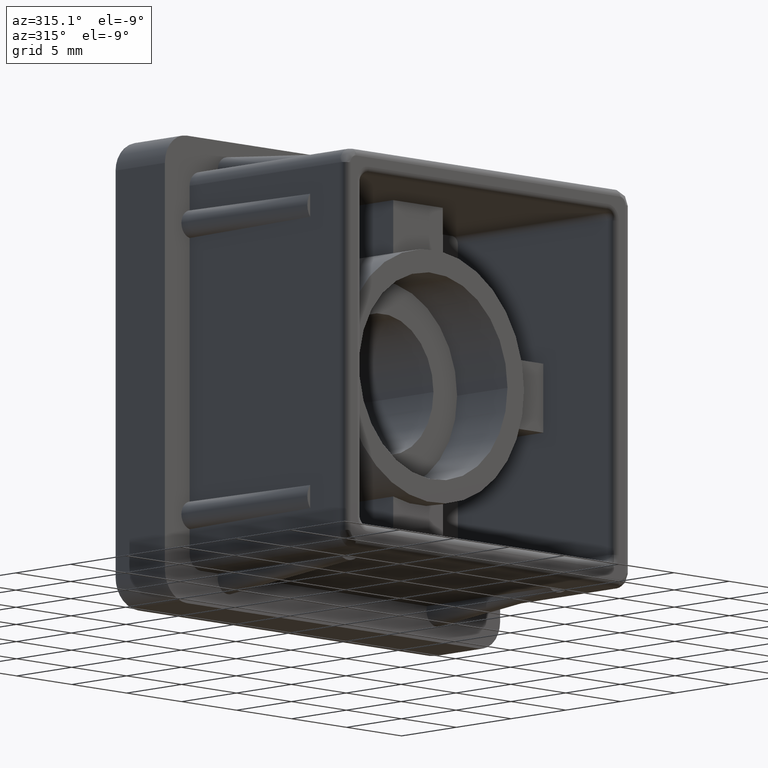
[diagram: clean part render]
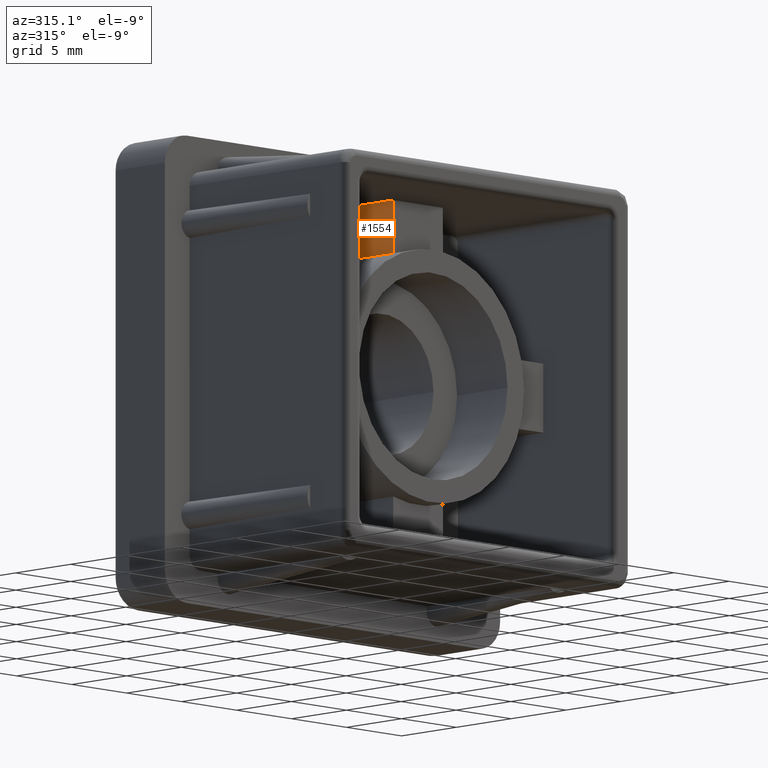
[diagram: same view with one face highlighted and labeled with its STEP entity id]
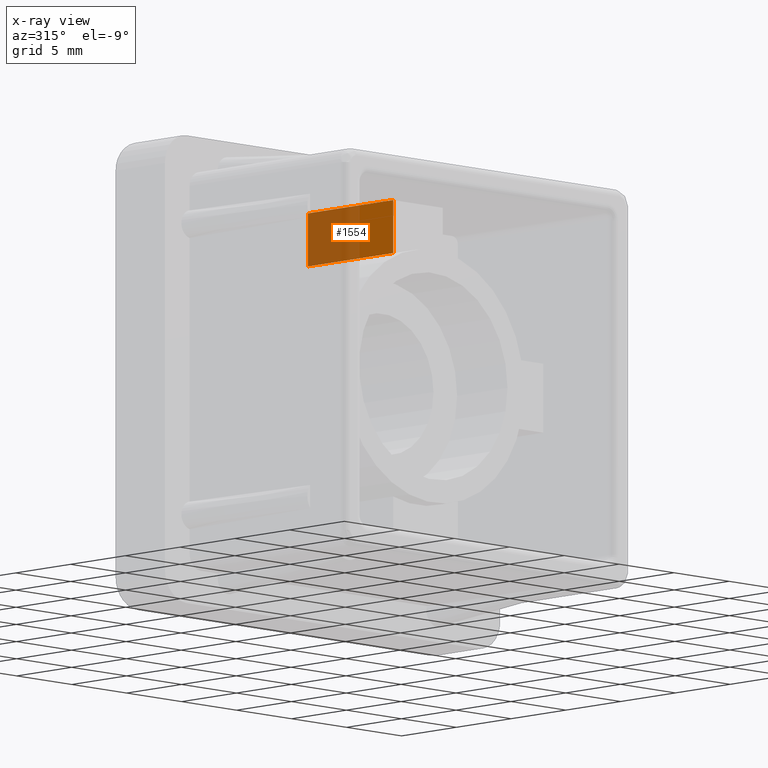
[diagram: x-ray of the same camera — body ghosted, the highlighted face saturated]
A machine part, auxiliary view. The second image highlights one B-rep face of the part: STEP entity #1554.
The next image is the same camera in x-ray: the body ghosted, the highlighted face saturated — about 60% of this face is hidden behind the body in this view.
In plain terms, the highlighted planar face has unit normal (-1, 0, 0).
Its self-contained STEP definition (entity closure, byte-faithful):
#79=PLANE('',#1708);
#145=LINE('',#2416,#277);
#150=LINE('',#2427,#282);
#210=LINE('',#2976,#342);
#211=LINE('',#2977,#343);
#277=VECTOR('',#1916,7.8);
#282=VECTOR('',#1925,3.46274606680623);
#342=VECTOR('',#2125,7.8);
#343=VECTOR('',#2126,3.46274606680623);
#457=FACE_OUTER_BOUND('',#551,.T.);
#551=EDGE_LOOP('',(#1391,#1392,#1393,#1394));
#727=VERTEX_POINT('',#2413);
#728=VERTEX_POINT('',#2415);
#732=VERTEX_POINT('',#2425);
#791=VERTEX_POINT('',#2975);
#897=EDGE_CURVE('',#727,#728,#145,.T.);
#903=EDGE_CURVE('',#732,#727,#150,.T.);
#1004=EDGE_CURVE('',#791,#732,#210,.T.);
#1005=EDGE_CURVE('',#728,#791,#211,.T.);
#1391=ORIENTED_EDGE('',*,*,#1004,.F.);
#1392=ORIENTED_EDGE('',*,*,#1005,.F.);
#1393=ORIENTED_EDGE('',*,*,#897,.F.);
#1394=ORIENTED_EDGE('',*,*,#903,.F.);
#1554=ADVANCED_FACE('',(#457),#79,.T.);
#1708=AXIS2_PLACEMENT_3D('',#2974,#2123,#2124);
#1916=DIRECTION('',(0.,-1.,0.));
#1925=DIRECTION('',(6.12323399573677E-17,0.,1.));
#2123=DIRECTION('center_axis',(-1.,0.,6.12323399573677E-17));
#2124=DIRECTION('ref_axis',(0.,0.,-1.));
#2125=DIRECTION('',(0.,1.,0.));
#2126=DIRECTION('',(-6.12323399573677E-17,0.,-1.));
#2413=CARTESIAN_POINT('',(10.75,14.2,11.4));
#2415=CARTESIAN_POINT('',(10.75,6.4,11.4));
#2416=CARTESIAN_POINT('',(10.75,7.1,11.4));
#2425=CARTESIAN_POINT('',(10.75,14.2,7.93725393319378));
#2427=CARTESIAN_POINT('',(10.75,14.2,5.70000000000001));
#2974=CARTESIAN_POINT('Origin',(10.75,14.2,11.4));
#2975=CARTESIAN_POINT('',(10.75,6.4,7.93725393319378));
#2976=CARTESIAN_POINT('',(10.75,14.2,7.93725393319378));
#2977=CARTESIAN_POINT('',(10.75,6.4,11.4));